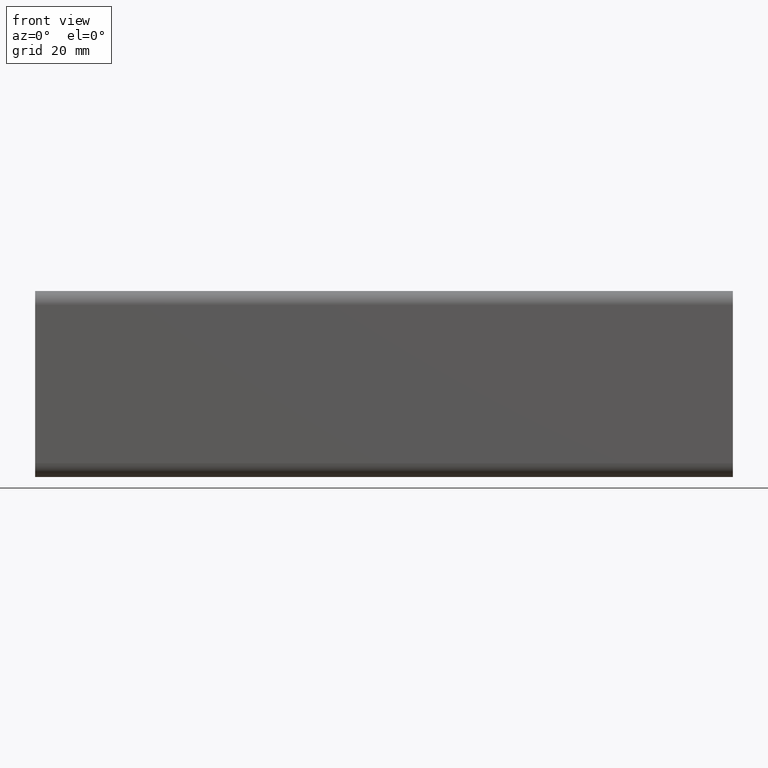
[diagram: clean part render]
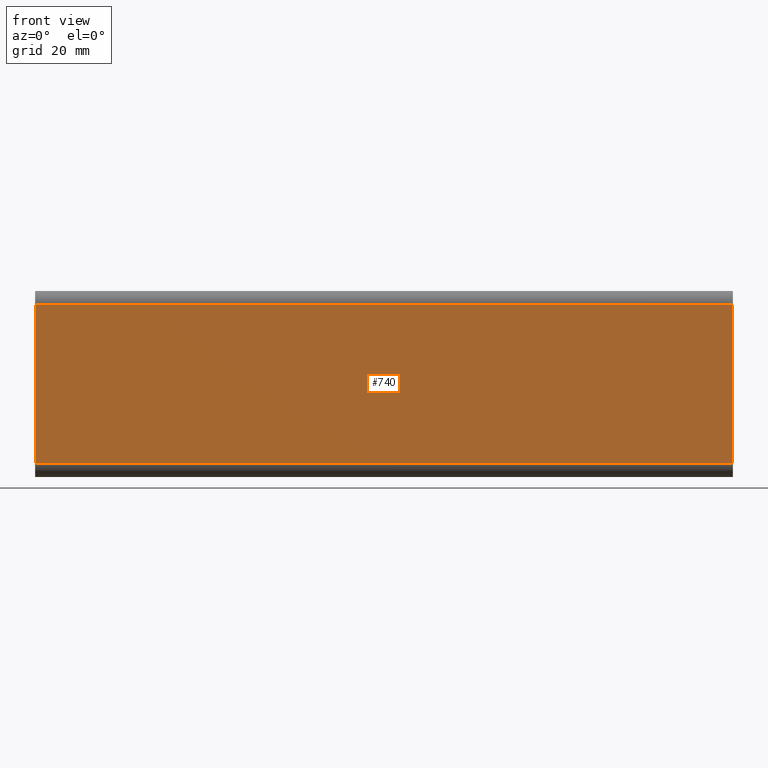
[diagram: same view with one face highlighted and labeled with its STEP entity id]
A machine part, front view. The second image highlights one B-rep face of the part: STEP entity #740.
In plain terms, the highlighted face is a freeform B-spline surface patch.
Its self-contained STEP definition (entity closure, byte-faithful):
#495=CARTESIAN_POINT('',(0.0,-25.0,-37.0));
#496=VERTEX_POINT('',#495);
#514=CARTESIAN_POINT('',(0.0,-25.0,-3.0));
#515=VERTEX_POINT('',#514);
#516=CARTESIAN_POINT('',(0.0,-25.0,-37.0));
#517=CARTESIAN_POINT('',(0.0,-25.0,-3.0));
#518=QUASI_UNIFORM_CURVE('',1,(#516,#517),.UNSPECIFIED.,.F.,.U.);
#519=EDGE_CURVE('',#496,#515,#518,.T.);
#565=CARTESIAN_POINT('',(150.0,-25.0,-3.0));
#566=VERTEX_POINT('',#565);
#580=CARTESIAN_POINT('',(150.0,-25.0,-37.0));
#581=VERTEX_POINT('',#580);
#582=CARTESIAN_POINT('',(150.0,-25.0,-37.0));
#583=CARTESIAN_POINT('',(150.0,-25.0,-3.0));
#584=QUASI_UNIFORM_CURVE('',1,(#582,#583),.UNSPECIFIED.,.F.,.U.);
#585=EDGE_CURVE('',#581,#566,#584,.T.);
#715=CARTESIAN_POINT('',(150.0,-25.0,-3.0));
#716=CARTESIAN_POINT('',(0.0,-25.0,-3.0));
#717=QUASI_UNIFORM_CURVE('',1,(#715,#716),.UNSPECIFIED.,.F.,.U.);
#718=EDGE_CURVE('',#566,#515,#717,.T.);
#725=CARTESIAN_POINT('',(-7.492499709270897,-25.0,-1.301700065898598));
#726=CARTESIAN_POINT('',(-7.492499709270897,-25.0,-38.698300846052483));
#727=CARTESIAN_POINT('',(157.492503732584400,-25.0,-1.301700065898598));
#728=CARTESIAN_POINT('',(157.492503732584400,-25.0,-38.698300846052483));
#729=B_SPLINE_SURFACE_WITH_KNOTS('',1,1,((#725,#727),(#726,#728)),.UNSPECIFIED.,.F.,.F.,.U.,(2,2),(2,2),(0.0,37.396600780153882),(0.0,164.985003441855300),.UNSPECIFIED.);
#730=ORIENTED_EDGE('',*,*,#519,.F.);
#731=CARTESIAN_POINT('',(150.0,-25.0,-37.0));
#732=CARTESIAN_POINT('',(0.0,-25.0,-37.0));
#733=QUASI_UNIFORM_CURVE('',1,(#731,#732),.UNSPECIFIED.,.F.,.U.);
#734=EDGE_CURVE('',#581,#496,#733,.T.);
#735=ORIENTED_EDGE('',*,*,#734,.F.);
#736=ORIENTED_EDGE('',*,*,#585,.T.);
#737=ORIENTED_EDGE('',*,*,#718,.T.);
#738=EDGE_LOOP('',(#730,#735,#736,#737));
#739=FACE_OUTER_BOUND('',#738,.T.);
#740=ADVANCED_FACE('',(#739),#729,.T.);